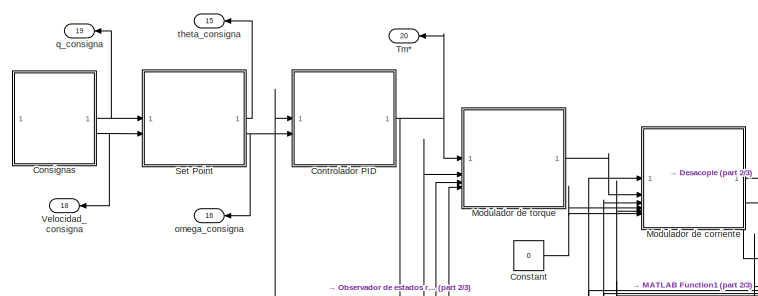
[diagram: root canvas - part 1/3, top left region]
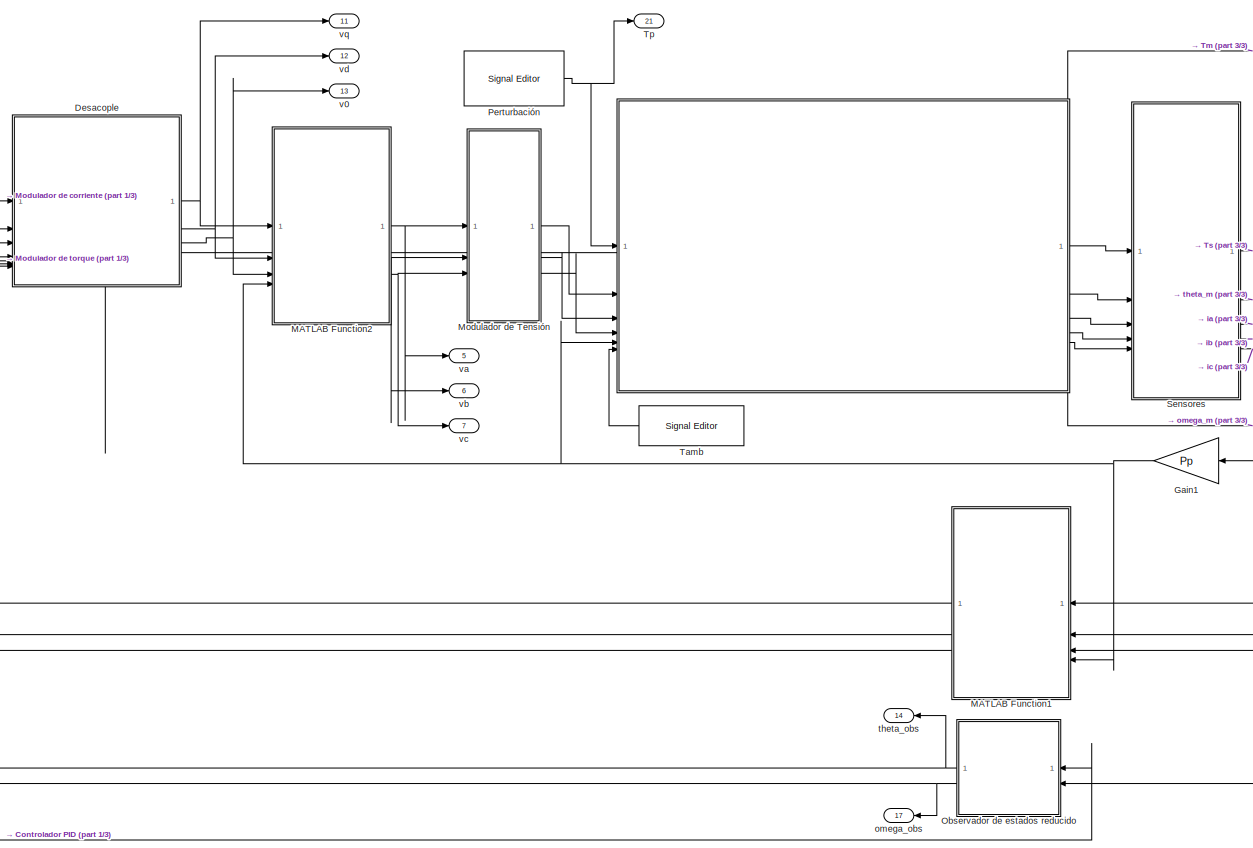
[diagram: root canvas - part 2/3, center side, full height]
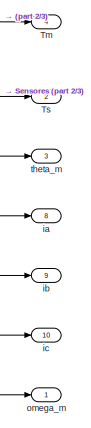
[diagram: root canvas - part 3/3, top right region]
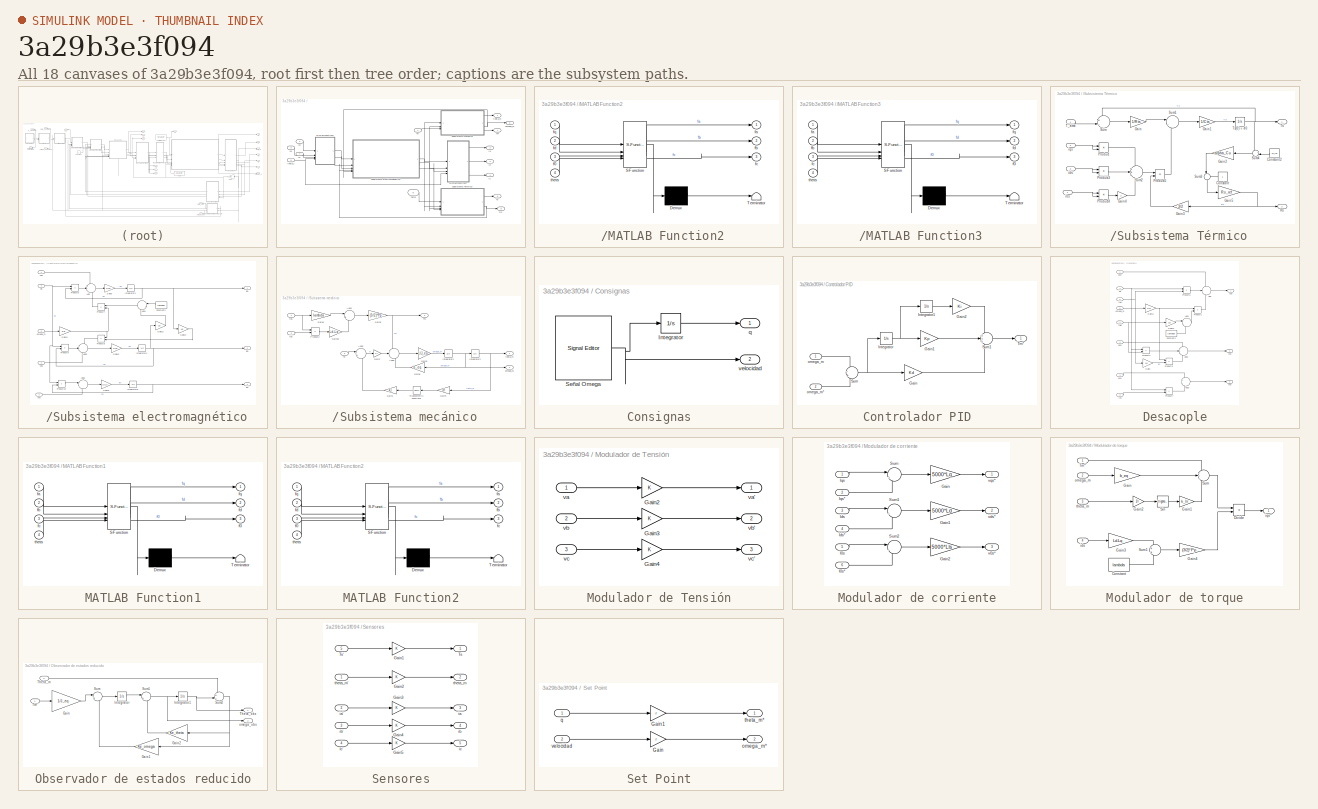
[diagram: thumbnail index - all 18 canvases of the model, root first then tree order]
MODEL slx_3a29b3e3f094
KIND model
CONFIG AbsTol = auto
CONFIG EnableMultiTasking = off
CONFIG FixedStep = auto
CONFIG MaxStep = 1e-4
CONFIG MinStep = auto
CONFIG RelTol = 1e-3
CONFIG SampleTimeConstraint = Unconstrained
CONFIG SolverName = ode45
CONFIG StartTime = 0.0
CONFIG StopTime = 15
BLOCK [SubSystem]  
  PortSchema = {"entries":[{"content":{"sides":[{"content":{"connectorIds":["In1","In2","In3","In4","In5","In6"]},"type":"ConnectorPlacement.EquallySpacedRectSide","uuid":"548fbf6f-bb54-461c-a3ca-ae13566b19bb"},{"content":{"connectorIds":["Out1","Out2","Out3","Out4","Out5"],"side":"RIGHT"},"type":"ConnectorPlacement.EquallySpacedRectSide","uuid":"c9a1420a-e64d-4e02-ad2b-140f5c663a2c"},{"content":{"connectorIds":...<+461ch>
BLOCK [Outport]  /Ia
  Port = 2
BLOCK [Outport]  /Ib
  Port = 3
BLOCK [Outport]  /Ic
  Port = 4
BLOCK [SubSystem]  /MATLAB Function2
  ErrorFcn = Stateflow.Translate.translate
  LibrarySourceBlock = simulink/User-Defined\nFunctions/MATLAB Function
  PermitHierarchicalResolution = ExplicitOnly
  SFBlockType = MATLAB Function
  TreatAsAtomicUnit = on
BLOCK [Demux]  /MATLAB Function2/ Demux 
  Outputs = 1
BLOCK [S-Function]  /MATLAB Function2/ SFunction 
  EnableBusSupport = on
  FunctionName = sf_sfun
  PortCounts = [4 4]
  SFcnIsStateOwnerBlock = off
  SFunctionDeploymentMode = off
  Tag = Stateflow S-Function 4
BLOCK [Terminator]  /MATLAB Function2/ Terminator 
BLOCK [Inport]  /MATLAB Function2/f0
  Port = 3
BLOCK [Outport]  /MATLAB Function2/fa
BLOCK [Outport]  /MATLAB Function2/fb
  Port = 2
BLOCK [Outport]  /MATLAB Function2/fc
  Port = 3
BLOCK [Inport]  /MATLAB Function2/fd
  Port = 2
BLOCK [Inport]  /MATLAB Function2/fq
BLOCK [Inport]  /MATLAB Function2/theta
  Port = 4
BLOCK [SubSystem]  /MATLAB Function3
  ErrorFcn = Stateflow.Translate.translate
  LibrarySourceBlock = simulink/User-Defined\nFunctions/MATLAB Function
  PermitHierarchicalResolution = ExplicitOnly
  SFBlockType = MATLAB Function
  TreatAsAtomicUnit = on
BLOCK [Demux]  /MATLAB Function3/ Demux 
  Outputs = 1
BLOCK [S-Function]  /MATLAB Function3/ SFunction 
  EnableBusSupport = on
  FunctionName = sf_sfun
  PortCounts = [4 4]
  SFcnIsStateOwnerBlock = off
  SFunctionDeploymentMode = off
  Tag = Stateflow S-Function 6
BLOCK [Terminator]  /MATLAB Function3/ Terminator 
BLOCK [Outport]  /MATLAB Function3/f0
  Port = 3
BLOCK [Inport]  /MATLAB Function3/fa
BLOCK [Inport]  /MATLAB Function3/fb
  Port = 2
BLOCK [Inport]  /MATLAB Function3/fc
  Port = 3
BLOCK [Outport]  /MATLAB Function3/fd
  Port = 2
BLOCK [Outport]  /MATLAB Function3/fq
BLOCK [Inport]  /MATLAB Function3/theta
  Port = 4
BLOCK [Outport]  /Rs
  Port = 8
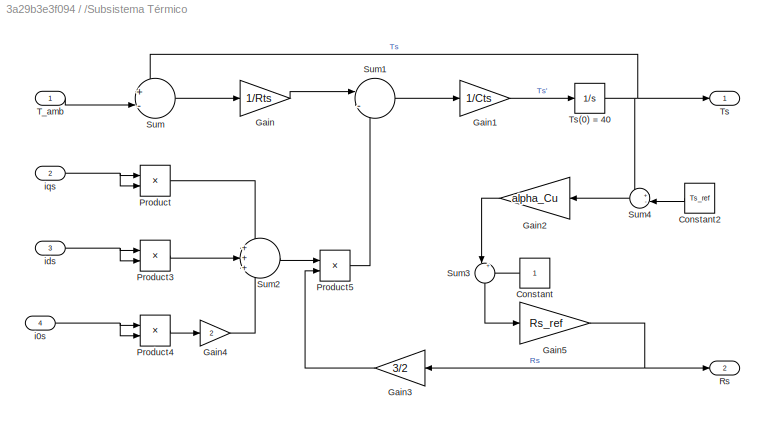
BLOCK [SubSystem]  /Subsistema Térmico
BLOCK [Constant]  /Subsistema Térmico/Constant
BLOCK [Constant]  /Subsistema Térmico/Constant2
  Value = Ts_ref
BLOCK [Gain]  /Subsistema Térmico/Gain
  Gain = 1/Rts
BLOCK [Gain]  /Subsistema Térmico/Gain1
  Gain = 1/Cts
BLOCK [Gain]  /Subsistema Térmico/Gain2
  Gain = alpha_Cu
BLOCK [Gain]  /Subsistema Térmico/Gain3
  Gain = 3/2
BLOCK [Gain]  /Subsistema Térmico/Gain4
  Gain = 2
BLOCK [Gain]  /Subsistema Térmico/Gain5
  Gain = Rs_ref
BLOCK [Product]  /Subsistema Térmico/Product
BLOCK [Product]  /Subsistema Térmico/Product3
BLOCK [Product]  /Subsistema Térmico/Product4
BLOCK [Product]  /Subsistema Térmico/Product5
BLOCK [Outport]  /Subsistema Térmico/Rs
  Port = 2
BLOCK [Sum]  /Subsistema Térmico/Sum
  Inputs = +-|
BLOCK [Sum]  /Subsistema Térmico/Sum1
  Inputs = |-+
BLOCK [Sum]  /Subsistema Térmico/Sum2
  Inputs = +++
BLOCK [Sum]  /Subsistema Térmico/Sum3
  Inputs = |++
  NameLocation = right
BLOCK [Sum]  /Subsistema Térmico/Sum4
  Inputs = +-|
BLOCK [Inport]  /Subsistema Térmico/T_amb
BLOCK [Outport]  /Subsistema Térmico/Ts
BLOCK [Integrator]  /Subsistema Térmico/Ts(0) = 40
  InitialCondition = 40
BLOCK [Inport]  /Subsistema Térmico/i0s
  Port = 4
BLOCK [Inport]  /Subsistema Térmico/ids
  Port = 3
BLOCK [Inport]  /Subsistema Térmico/iqs
  Port = 2
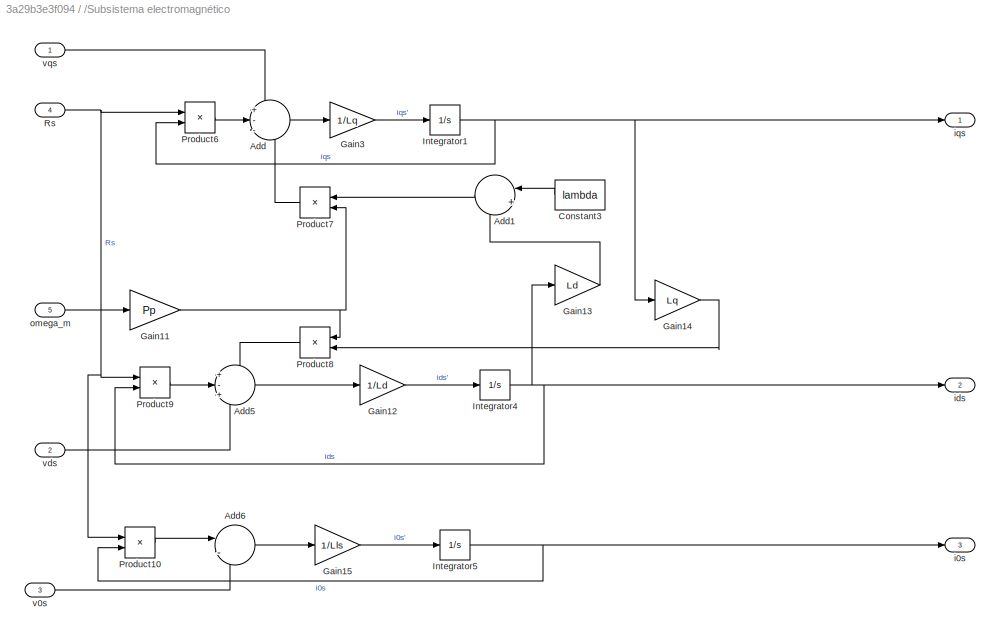
BLOCK [SubSystem]  /Subsistema electromagnético
BLOCK [Sum]  /Subsistema electromagnético/Add
  Inputs = +--
BLOCK [Sum]  /Subsistema electromagnético/Add1
  Inputs = |++
BLOCK [Sum]  /Subsistema electromagnético/Add5
  Inputs = +-+
BLOCK [Sum]  /Subsistema electromagnético/Add6
  Inputs = |-+
BLOCK [Constant]  /Subsistema electromagnético/Constant3
  Value = lambda
BLOCK [Gain]  /Subsistema electromagnético/Gain11
  Gain = Pp
BLOCK [Gain]  /Subsistema electromagnético/Gain12
  Gain = 1/Ld
BLOCK [Gain]  /Subsistema electromagnético/Gain13
  Gain = Ld
BLOCK [Gain]  /Subsistema electromagnético/Gain14
  Gain = Lq
BLOCK [Gain]  /Subsistema electromagnético/Gain15
  Gain = 1/Lls
BLOCK [Gain]  /Subsistema electromagnético/Gain3
  Gain = 1/Lq
BLOCK [Integrator]  /Subsistema electromagnético/Integrator1
BLOCK [Integrator]  /Subsistema electromagnético/Integrator4
BLOCK [Integrator]  /Subsistema electromagnético/Integrator5
BLOCK [Product]  /Subsistema electromagnético/Product10
BLOCK [Product]  /Subsistema electromagnético/Product6
BLOCK [Product]  /Subsistema electromagnético/Product7
BLOCK [Product]  /Subsistema electromagnético/Product8
BLOCK [Product]  /Subsistema electromagnético/Product9
BLOCK [Inport]  /Subsistema electromagnético/Rs
  Port = 4
BLOCK [Outport]  /Subsistema electromagnético/i0s
  Port = 3
BLOCK [Outport]  /Subsistema electromagnético/ids
  Port = 2
BLOCK [Outport]  /Subsistema electromagnético/iqs
BLOCK [Inport]  /Subsistema electromagnético/omega_m
  Port = 5
BLOCK [Inport]  /Subsistema electromagnético/v0s
  Port = 3
BLOCK [Inport]  /Subsistema electromagnético/vds
  Port = 2
BLOCK [Inport]  /Subsistema electromagnético/vqs
BLOCK [SubSystem]  /Subsistema mecánico
BLOCK [Sum]  /Subsistema mecánico/Add2
  Inputs = |++
BLOCK [Sum]  /Subsistema mecánico/Add3
  Inputs = +--
BLOCK [Sum]  /Subsistema mecánico/Add4
  Inputs = |++
BLOCK [Gain]  /Subsistema mecánico/Gain1
  Gain = k_l
BLOCK [Gain]  /Subsistema mecánico/Gain10
  Gain = Ld-Lq
BLOCK [Gain]  /Subsistema mecánico/Gain4
  Gain = 1/r
BLOCK [Gain]  /Subsistema mecánico/Gain5
  Gain = 1/J_eq
BLOCK [Gain]  /Subsistema mecánico/Gain6
  Gain = b_eq
BLOCK [Gain]  /Subsistema mecánico/Gain7
  Gain = 1/r
BLOCK [Gain]  /Subsistema mecánico/Gain8
  Gain = lambda
BLOCK [Gain]  /Subsistema mecánico/Gain9
  Gain = (3/2)*Pp
BLOCK [Integrator]  /Subsistema mecánico/Integrator2
BLOCK [Integrator]  /Subsistema mecánico/Integrator3
BLOCK [Product]  /Subsistema mecánico/Product2
BLOCK [Outport]  /Subsistema mecánico/Tm
  IconDisplay = Port number and signal name
  Port = 3
BLOCK [Inport]  /Subsistema mecánico/Tp
  Port = 3
BLOCK [Trigonometry]  /Subsistema mecánico/Trigonometric Function1
BLOCK [Inport]  /Subsistema mecánico/ids
  Port = 2
BLOCK [Inport]  /Subsistema mecánico/iqs
BLOCK [Outport]  /Subsistema mecánico/omega_m
  Port = 2
BLOCK [Outport]  /Subsistema mecánico/theta_m
BLOCK [Inport]  /Tamb
  Port = 6
BLOCK [Outport]  /Tm
  Port = 7
BLOCK [Inport]  /Tp
BLOCK [Outport]  /Ts
  Port = 5
BLOCK [Outport]  /omega_m
  Port = 6
BLOCK [Outport]  /theta_m
BLOCK [Inport]  /theta_r
  Port = 5
BLOCK [Inport]  /va
  Port = 2
BLOCK [Inport]  /vb
  Port = 3
BLOCK [Inport]  /vc
  Port = 4
BLOCK [SubSystem] Consignas
BLOCK [Integrator] Consignas/Integrator
BLOCK [Reference] Consignas/Señal Omega  REF=SignalEditorBlockLib/Signal Editor
  LibrarySourceBlock = simulink/Sources/Signal Editor
  SourceBlock = SignalEditorBlockLib/Signal Editor
  SourceType = SignalEditor
  UserDataPersistent = on
BLOCK [Outport] Consignas/q
BLOCK [Outport] Consignas/velocidad
  Port = 2
BLOCK [Constant] Constant
  Value = 0
BLOCK [SubSystem] Controlador PID
BLOCK [Gain] Controlador PID/Gain
  Gain = Kd
BLOCK [Gain] Controlador PID/Gain1
  Gain = Kp
BLOCK [Gain] Controlador PID/Gain2
  Gain = Ki
BLOCK [Integrator] Controlador PID/Integrator
BLOCK [Integrator] Controlador PID/Integrator1
BLOCK [Sum] Controlador PID/Sum
  Inputs = -+
BLOCK [Sum] Controlador PID/Sum1
  Inputs = +++
BLOCK [Outport] Controlador PID/Tm*
BLOCK [Inport] Controlador PID/omega_m
BLOCK [Inport] Controlador PID/omega_m*
  Port = 2
BLOCK [SubSystem] Desacople
BLOCK [Sum] Desacople/Add
  Inputs = +++
BLOCK [Sum] Desacople/Add1
  Inputs = |++
BLOCK [Sum] Desacople/Add2
  Inputs = ++-
BLOCK [Sum] Desacople/Add3
BLOCK [Constant] Desacople/Constant3
  Value = lambda
BLOCK [Gain] Desacople/Gain1
  Gain = Lq
BLOCK [Gain] Desacople/Gain11
  Gain = Pp
BLOCK [Gain] Desacople/Gain12
  Gain = Ld
BLOCK [Inport] Desacople/I0s
  Port = 8
BLOCK [Inport] Desacople/Ids
  Port = 7
BLOCK [Inport] Desacople/Iqs
  Port = 6
BLOCK [Product] Desacople/Product1
BLOCK [Product] Desacople/Product2
BLOCK [Product] Desacople/Product3
BLOCK [Product] Desacople/Product6
BLOCK [Product] Desacople/Product7
BLOCK [Inport] Desacople/Rs
  Port = 4
BLOCK [Inport] Desacople/omega_m
  Port = 5
BLOCK [Outport] Desacople/v0s
  Port = 3
BLOCK [Inport] Desacople/v0s*
  Port = 3
BLOCK [Outport] Desacople/vds
  Port = 2
BLOCK [Inport] Desacople/vds*
  Port = 2
BLOCK [Outport] Desacople/vqs
BLOCK [Inport] Desacople/vqs*
BLOCK [Gain] Gain1
  Gain = Pp
BLOCK [SubSystem] MATLAB Function1
  ErrorFcn = Stateflow.Translate.translate
  LibrarySourceBlock = simulink/User-Defined\nFunctions/MATLAB Function
  PermitHierarchicalResolution = ExplicitOnly
  SFBlockType = MATLAB Function
  TreatAsAtomicUnit = on
BLOCK [Demux] MATLAB Function1/ Demux 
  Outputs = 1
BLOCK [S-Function] MATLAB Function1/ SFunction 
  EnableBusSupport = on
  FunctionName = sf_sfun
  PortCounts = [4 4]
  SFcnIsStateOwnerBlock = off
  SFunctionDeploymentMode = off
  Tag = Stateflow S-Function 7
BLOCK [Terminator] MATLAB Function1/ Terminator 
BLOCK [Outport] MATLAB Function1/f0
  Port = 3
BLOCK [Inport] MATLAB Function1/fa
BLOCK [Inport] MATLAB Function1/fb
  Port = 2
BLOCK [Inport] MATLAB Function1/fc
  Port = 3
BLOCK [Outport] MATLAB Function1/fd
  Port = 2
BLOCK [Outport] MATLAB Function1/fq
BLOCK [Inport] MATLAB Function1/theta
  Port = 4
BLOCK [SubSystem] MATLAB Function2
  ErrorFcn = Stateflow.Translate.translate
  LibrarySourceBlock = simulink/User-Defined\nFunctions/MATLAB Function
  PermitHierarchicalResolution = ExplicitOnly
  SFBlockType = MATLAB Function
  TreatAsAtomicUnit = on
BLOCK [Demux] MATLAB Function2/ Demux 
  Outputs = 1
BLOCK [S-Function] MATLAB Function2/ SFunction 
  EnableBusSupport = on
  FunctionName = sf_sfun
  PortCounts = [4 4]
  SFcnIsStateOwnerBlock = off
  SFunctionDeploymentMode = off
  Tag = Stateflow S-Function 8
BLOCK [Terminator] MATLAB Function2/ Terminator 
BLOCK [Inport] MATLAB Function2/f0
  Port = 3
BLOCK [Outport] MATLAB Function2/fa
BLOCK [Outport] MATLAB Function2/fb
  Port = 2
BLOCK [Outport] MATLAB Function2/fc
  Port = 3
BLOCK [Inport] MATLAB Function2/fd
  Port = 2
BLOCK [Inport] MATLAB Function2/fq
BLOCK [Inport] MATLAB Function2/theta
  Port = 4
BLOCK [SubSystem] Modulador de Tensión
BLOCK [Gain] Modulador de Tensión/Gain2
BLOCK [Gain] Modulador de Tensión/Gain3
BLOCK [Gain] Modulador de Tensión/Gain4
BLOCK [Inport] Modulador de Tensión/va
BLOCK [Outport] Modulador de Tensión/va'
BLOCK [Inport] Modulador de Tensión/vb
  Port = 2
BLOCK [Outport] Modulador de Tensión/vb'
  Port = 2
BLOCK [Inport] Modulador de Tensión/vc
  Port = 3
BLOCK [Outport] Modulador de Tensión/vc'
  Port = 3
BLOCK [SubSystem] Modulador de corriente
BLOCK [Gain] Modulador de corriente/Gain
  Gain = 5000*Lq
BLOCK [Gain] Modulador de corriente/Gain1
  Gain = 5000*Ld
BLOCK [Gain] Modulador de corriente/Gain2
  Gain = 5000*Lls
BLOCK [Inport] Modulador de corriente/I0s
  Port = 5
BLOCK [Inport] Modulador de corriente/I0s*
  Port = 6
BLOCK [Inport] Modulador de corriente/Ids
  Port = 3
BLOCK [Inport] Modulador de corriente/Ids*
  Port = 4
BLOCK [Inport] Modulador de corriente/Iqs
BLOCK [Inport] Modulador de corriente/Iqs*
  Port = 2
BLOCK [Sum] Modulador de corriente/Sum
  Inputs = |-+
BLOCK [Sum] Modulador de corriente/Sum1
  Inputs = |-+
BLOCK [Sum] Modulador de corriente/Sum2
  Inputs = |-+
BLOCK [Outport] Modulador de corriente/v0s*
  Port = 3
BLOCK [Outport] Modulador de corriente/vds*
  Port = 2
BLOCK [Outport] Modulador de corriente/vqs*
BLOCK [SubSystem] Modulador de torque
BLOCK [Constant] Modulador de torque/Constant
  Value = lambda
BLOCK [Product] Modulador de torque/Divide
  Inputs = */
BLOCK [Gain] Modulador de torque/Gain
  Gain = b_eq
BLOCK [Gain] Modulador de torque/Gain1
  Gain = k_l/r
BLOCK [Gain] Modulador de torque/Gain2
  Gain = 1/r
BLOCK [Gain] Modulador de torque/Gain3
  Gain = Ld-Lq
BLOCK [Gain] Modulador de torque/Gain4
  Gain = (3/2)*Pp
BLOCK [Trigonometry] Modulador de torque/Sin
BLOCK [Sum] Modulador de torque/Sum
  Inputs = +++
BLOCK [Sum] Modulador de torque/Sum1
BLOCK [Inport] Modulador de torque/Tm*
BLOCK [Inport] Modulador de torque/ids
  Port = 4
BLOCK [Outport] Modulador de torque/iqs*
BLOCK [Inport] Modulador de torque/omega_m
  Port = 2
BLOCK [Inport] Modulador de torque/theta_m
  Port = 3
BLOCK [SubSystem] Observador de estados reducido
BLOCK [Gain] Observador de estados reducido/Gain
  Gain = 1/J_eq
BLOCK [Gain] Observador de estados reducido/Gain1
  Gain = Ke_omega
BLOCK [Gain] Observador de estados reducido/Gain2
  Gain = Ke_theta
BLOCK [Integrator] Observador de estados reducido/Integrator
BLOCK [Integrator] Observador de estados reducido/Integrator1
BLOCK [Sum] Observador de estados reducido/Sum
  Inputs = |++
BLOCK [Sum] Observador de estados reducido/Sum1
  Inputs = |++
BLOCK [Sum] Observador de estados reducido/Sum2
  Inputs = +-|
BLOCK [Inport] Observador de estados reducido/Theta_m
  Port = 2
BLOCK [Outport] Observador de estados reducido/Theta_obs
BLOCK [Inport] Observador de estados reducido/Tm*
BLOCK [Outport] Observador de estados reducido/omega_obs
  Port = 2
BLOCK [Reference] Perturbación  REF=SignalEditorBlockLib/Signal Editor
  LibrarySourceBlock = simulink/Sources/Signal Editor
  SourceBlock = SignalEditorBlockLib/Signal Editor
  SourceType = SignalEditor
  UserDataPersistent = on
BLOCK [SubSystem] Sensores
BLOCK [Gain] Sensores/Gain1
BLOCK [Gain] Sensores/Gain2
BLOCK [Gain] Sensores/Gain3
BLOCK [Gain] Sensores/Gain4
BLOCK [Gain] Sensores/Gain5
BLOCK [Inport] Sensores/Ic'
  Port = 4
BLOCK [Outport] Sensores/Ts
BLOCK [Inport] Sensores/Ts'
  Port = 5
BLOCK [Outport] Sensores/ia
  Port = 3
BLOCK [Inport] Sensores/ia'
  Port = 2
BLOCK [Outport] Sensores/ib
  Port = 4
BLOCK [Inport] Sensores/ib'
  Port = 3
BLOCK [Outport] Sensores/ic
  Port = 5
BLOCK [Outport] Sensores/theta_m
  Port = 2
BLOCK [Inport] Sensores/theta_m'
BLOCK [SubSystem] Set Point
BLOCK [Gain] Set Point/Gain
  Gain = r
BLOCK [Gain] Set Point/Gain1
  Gain = r
BLOCK [Outport] Set Point/omega_m*
  Port = 2
BLOCK [Inport] Set Point/q
BLOCK [Outport] Set Point/theta_m*
BLOCK [Inport] Set Point/velocidad
  Port = 2
BLOCK [Reference] Tamb  REF=SignalEditorBlockLib/Signal Editor
  LibrarySourceBlock = simulink/Sources/Signal Editor
  SourceBlock = SignalEditorBlockLib/Signal Editor
  SourceType = SignalEditor
  UserDataPersistent = on
BLOCK [Outport] Tm
  Port = 4
BLOCK [Outport] Tm*
  Port = 20
BLOCK [Outport] Tp
  Port = 21
BLOCK [Outport] Ts
  Port = 2
BLOCK [Outport] Velocidad_consigna
  Port = 18
BLOCK [Outport] ia
  Port = 8
BLOCK [Outport] ib
  Port = 9
BLOCK [Outport] ic
  Port = 10
BLOCK [Outport] omega_consigna
  Port = 16
BLOCK [Outport] omega_m
BLOCK [Outport] omega_obs
  Port = 17
BLOCK [Outport] q_consigna
  Port = 19
BLOCK [Outport] theta_consigna
  Port = 15
BLOCK [Outport] theta_m
  Port = 3
BLOCK [Outport] theta_obs
  Port = 14
BLOCK [Outport] v0
  Port = 13
BLOCK [Outport] va
  Port = 5
BLOCK [Outport] vb
  Port = 6
BLOCK [Outport] vc
  Port = 7
BLOCK [Outport] vd
  Port = 12
BLOCK [Outport] vq
  Port = 11
LINE  /MATLAB Function2:1 ->  /Ia:1
LINE  /MATLAB Function2:2 ->  /Ib:1
LINE  /MATLAB Function2:3 ->  /Ic:1
LINE  /MATLAB Function3:1 ->  /Subsistema electromagnético:1
LINE  /MATLAB Function3:2 ->  /Subsistema electromagnético:2
LINE  /MATLAB Function3:3 ->  /Subsistema electromagnético:3
LINE  /Subsistema Térmico/Constant2:1 ->  /Subsistema Térmico/Sum4:2
LINE  /Subsistema Térmico/Constant:1 ->  /Subsistema Térmico/Sum3:2
LINE  /Subsistema Térmico/Gain1:1 ->  /Subsistema Térmico/Ts(0) = 40:1
LINE  /Subsistema Térmico/Gain2:1 ->  /Subsistema Térmico/Sum3:1
LINE  /Subsistema Térmico/Gain3:1 ->  /Subsistema Térmico/Product5:2
LINE  /Subsistema Térmico/Gain4:1 ->  /Subsistema Térmico/Sum2:3
NET  /Subsistema Térmico/Gain5:1 ->  /Subsistema Térmico/Gain3:1,  /Subsistema Térmico/Rs:1
LINE  /Subsistema Térmico/Gain:1 ->  /Subsistema Térmico/Sum1:1
LINE  /Subsistema Térmico/Product3:1 ->  /Subsistema Térmico/Sum2:2
LINE  /Subsistema Térmico/Product4:1 ->  /Subsistema Térmico/Gain4:1
LINE  /Subsistema Térmico/Product5:1 ->  /Subsistema Térmico/Sum1:2
LINE  /Subsistema Térmico/Product:1 ->  /Subsistema Térmico/Sum2:1
LINE  /Subsistema Térmico/Sum1:1 ->  /Subsistema Térmico/Gain1:1
LINE  /Subsistema Térmico/Sum2:1 ->  /Subsistema Térmico/Product5:1
LINE  /Subsistema Térmico/Sum3:1 ->  /Subsistema Térmico/Gain5:1
LINE  /Subsistema Térmico/Sum4:1 ->  /Subsistema Térmico/Gain2:1
LINE  /Subsistema Térmico/Sum:1 ->  /Subsistema Térmico/Gain:1
LINE  /Subsistema Térmico/T_amb:1 ->  /Subsistema Térmico/Sum:2
NET  /Subsistema Térmico/Ts(0) = 40:1 ->  /Subsistema Térmico/Sum4:1,  /Subsistema Térmico/Sum:1,  /Subsistema Térmico/Ts:1
NET  /Subsistema Térmico/i0s:1 ->  /Subsistema Térmico/Product4:1,  /Subsistema Térmico/Product4:2
NET  /Subsistema Térmico/ids:1 ->  /Subsistema Térmico/Product3:1,  /Subsistema Térmico/Product3:2
NET  /Subsistema Térmico/iqs:1 ->  /Subsistema Térmico/Product:1,  /Subsistema Térmico/Product:2
LINE  /Subsistema Térmico:1 ->  /Ts:1
NET  /Subsistema Térmico:2 ->  /Rs:1,  /Subsistema electromagnético:4
LINE  /Subsistema electromagnético/Add1:1 ->  /Subsistema electromagnético/Product7:1
LINE  /Subsistema electromagnético/Add5:1 ->  /Subsistema electromagnético/Gain12:1
LINE  /Subsistema electromagnético/Add6:1 ->  /Subsistema electromagnético/Gain15:1
LINE  /Subsistema electromagnético/Add:1 ->  /Subsistema electromagnético/Gain3:1
LINE  /Subsistema electromagnético/Constant3:1 ->  /Subsistema electromagnético/Add1:1
NET  /Subsistema electromagnético/Gain11:1 ->  /Subsistema electromagnético/Product7:2,  /Subsistema electromagnético/Product8:1
LINE  /Subsistema electromagnético/Gain12:1 ->  /Subsistema electromagnético/Integrator4:1
LINE  /Subsistema electromagnético/Gain13:1 ->  /Subsistema electromagnético/Add1:2
LINE  /Subsistema electromagnético/Gain14:1 ->  /Subsistema electromagnético/Product8:2
LINE  /Subsistema electromagnético/Gain15:1 ->  /Subsistema electromagnético/Integrator5:1
LINE  /Subsistema electromagnético/Gain3:1 ->  /Subsistema electromagnético/Integrator1:1
NET  /Subsistema electromagnético/Integrator1:1 ->  /Subsistema electromagnético/Gain14:1,  /Subsistema electromagnético/Product6:2,  /Subsistema electromagnético/iqs:1
NET  /Subsistema electromagnético/Integrator4:1 ->  /Subsistema electromagnético/Gain13:1,  /Subsistema electromagnético/Product9:2,  /Subsistema electromagnético/ids:1
NET  /Subsistema electromagnético/Integrator5:1 ->  /Subsistema electromagnético/Product10:2,  /Subsistema electromagnético/i0s:1
LINE  /Subsistema electromagnético/Product10:1 ->  /Subsistema electromagnético/Add6:1
LINE  /Subsistema electromagnético/Product6:1 ->  /Subsistema electromagnético/Add:2
LINE  /Subsistema electromagnético/Product7:1 ->  /Subsistema electromagnético/Add:3
LINE  /Subsistema electromagnético/Product8:1 ->  /Subsistema electromagnético/Add5:1
LINE  /Subsistema electromagnético/Product9:1 ->  /Subsistema electromagnético/Add5:2
NET  /Subsistema electromagnético/Rs:1 ->  /Subsistema electromagnético/Product10:1,  /Subsistema electromagnético/Product6:1,  /Subsistema electromagnético/Product9:1
LINE  /Subsistema electromagnético/omega_m:1 ->  /Subsistema electromagnético/Gain11:1
LINE  /Subsistema electromagnético/v0s:1 ->  /Subsistema electromagnético/Add6:2
LINE  /Subsistema electromagnético/vds:1 ->  /Subsistema electromagnético/Add5:3
LINE  /Subsistema electromagnético/vqs:1 ->  /Subsistema electromagnético/Add:1
NET  /Subsistema electromagnético:1 ->  /MATLAB Function2:1,  /Subsistema Térmico:2,  /Subsistema mecánico:1
NET  /Subsistema electromagnético:2 ->  /MATLAB Function2:2,  /Subsistema Térmico:3,  /Subsistema mecánico:2
NET  /Subsistema electromagnético:3 ->  /MATLAB Function2:3,  /Subsistema Térmico:4
LINE  /Subsistema mecánico/Add2:1 ->  /Subsistema mecánico/Gain7:1
LINE  /Subsistema mecánico/Add3:1 ->  /Subsistema mecánico/Gain5:1
LINE  /Subsistema mecánico/Add4:1 ->  /Subsistema mecánico/Gain9:1
LINE  /Subsistema mecánico/Gain10:1 ->  /Subsistema mecánico/Add4:2
LINE  /Subsistema mecánico/Gain1:1 ->  /Subsistema mecánico/Add2:2
LINE  /Subsistema mecánico/Gain4:1 ->  /Subsistema mecánico/Trigonometric Function1:1
LINE  /Subsistema mecánico/Gain5:1 ->  /Subsistema mecánico/Integrator2:1
LINE  /Subsistema mecánico/Gain6:1 ->  /Subsistema mecánico/Add3:3
LINE  /Subsistema mecánico/Gain7:1 ->  /Subsistema mecánico/Add3:2
LINE  /Subsistema mecánico/Gain8:1 ->  /Subsistema mecánico/Add4:1
NET  /Subsistema mecánico/Gain9:1 ->  /Subsistema mecánico/Add3:1,  /Subsistema mecánico/Tm:1
NET  /Subsistema mecánico/Integrator2:1 ->  /Subsistema mecánico/Gain6:1,  /Subsistema mecánico/Integrator3:1,  /Subsistema mecánico/omega_m:1
NET  /Subsistema mecánico/Integrator3:1 ->  /Subsistema mecánico/Gain4:1,  /Subsistema mecánico/theta_m:1
LINE  /Subsistema mecánico/Product2:1 ->  /Subsistema mecánico/Gain10:1
LINE  /Subsistema mecánico/Tp:1 ->  /Subsistema mecánico/Add2:1
LINE  /Subsistema mecánico/Trigonometric Function1:1 ->  /Subsistema mecánico/Gain1:1
LINE  /Subsistema mecánico/ids:1 ->  /Subsistema mecánico/Product2:2
NET  /Subsistema mecánico/iqs:1 ->  /Subsistema mecánico/Gain8:1,  /Subsistema mecánico/Product2:1
LINE  /Subsistema mecánico:1 ->  /theta_m:1
NET  /Subsistema mecánico:2 ->  /Subsistema electromagnético:5,  /omega_m:1
LINE  /Subsistema mecánico:3 ->  /Tm:1
LINE  /Tamb:1 ->  /Subsistema Térmico:1
LINE  /Tp:1 ->  /Subsistema mecánico:3
NET  /theta_r:1 ->  /MATLAB Function2:4,  /MATLAB Function3:4
LINE  /va:1 ->  /MATLAB Function3:1
LINE  /vb:1 ->  /MATLAB Function3:2
LINE  /vc:1 ->  /MATLAB Function3:3
LINE  :1 -> Sensores:1
LINE  :2 -> Sensores:2
LINE  :3 -> Sensores:3
LINE  :4 -> Sensores:4
LINE  :5 -> Sensores:5
LINE  :6 -> omega_m:1
LINE  :7 -> Tm:1
LINE  :8 -> Desacople:4
LINE Consignas/Integrator:1 -> Consignas/q:1
NET Consignas/Señal Omega:1 -> Consignas/Integrator:1, Consignas/velocidad:1
NET Consignas:1 -> Set Point:1, q_consigna:1
NET Consignas:2 -> Set Point:2, Velocidad_consigna:1
NET Constant:1 -> Modulador de corriente:4, Modulador de corriente:6
LINE Controlador PID/Gain1:1 -> Controlador PID/Sum1:2
LINE Controlador PID/Gain2:1 -> Controlador PID/Sum1:1
LINE Controlador PID/Gain:1 -> Controlador PID/Sum1:3
LINE Controlador PID/Integrator1:1 -> Controlador PID/Gain2:1
NET Controlador PID/Integrator:1 -> Controlador PID/Gain1:1, Controlador PID/Integrator1:1
LINE Controlador PID/Sum1:1 -> Controlador PID/Tm*:1
NET Controlador PID/Sum:1 -> Controlador PID/Gain:1, Controlador PID/Integrator:1
LINE Controlador PID/omega_m*:1 -> Controlador PID/Sum:2
LINE Controlador PID/omega_m:1 -> Controlador PID/Sum:1
NET Controlador PID:1 -> Modulador de torque:1, Observador de estados reducido:1, Tm*:1
LINE Desacople/Add1:1 -> Desacople/Product1:2
LINE Desacople/Add2:1 -> Desacople/vds:1
LINE Desacople/Add3:1 -> Desacople/v0s:1
LINE Desacople/Add:1 -> Desacople/vqs:1
LINE Desacople/Constant3:1 -> Desacople/Add1:2
NET Desacople/Gain11:1 -> Desacople/Product1:1, Desacople/Product3:1
LINE Desacople/Gain12:1 -> Desacople/Add1:1
LINE Desacople/Gain1:1 -> Desacople/Product3:2
LINE Desacople/I0s:1 -> Desacople/Product7:2
NET Desacople/Ids:1 -> Desacople/Gain12:1, Desacople/Product2:2
NET Desacople/Iqs:1 -> Desacople/Gain1:1, Desacople/Product6:2
LINE Desacople/Product1:1 -> Desacople/Add:3
LINE Desacople/Product2:1 -> Desacople/Add2:2
LINE Desacople/Product3:1 -> Desacople/Add2:3
LINE Desacople/Product6:1 -> Desacople/Add:2
LINE Desacople/Product7:1 -> Desacople/Add3:2
NET Desacople/Rs:1 -> Desacople/Product2:1, Desacople/Product6:1, Desacople/Product7:1
LINE Desacople/omega_m:1 -> Desacople/Gain11:1
LINE Desacople/v0s*:1 -> Desacople/Add3:1
LINE Desacople/vds*:1 -> Desacople/Add2:1
LINE Desacople/vqs*:1 -> Desacople/Add:1
NET Desacople:1 -> MATLAB Function2:1, vq:1
NET Desacople:2 -> MATLAB Function2:2, vd:1
NET Desacople:3 -> MATLAB Function2:3, v0:1
NET Gain1:1 ->  :5, MATLAB Function1:4, MATLAB Function2:4
NET MATLAB Function1:1 -> Desacople:6, Modulador de corriente:1
NET MATLAB Function1:2 -> Desacople:7, Modulador de corriente:3, Modulador de torque:4
NET MATLAB Function1:3 -> Desacople:8, Modulador de corriente:5
NET MATLAB Function2:1 -> Modulador de Tensión:1, va:1
NET MATLAB Function2:2 -> Modulador de Tensión:2, vb:1
NET MATLAB Function2:3 -> Modulador de Tensión:3, vc:1
LINE Modulador de Tensión/Gain2:1 -> Modulador de Tensión/va':1
LINE Modulador de Tensión/Gain3:1 -> Modulador de Tensión/vb':1
LINE Modulador de Tensión/Gain4:1 -> Modulador de Tensión/vc':1
LINE Modulador de Tensión/va:1 -> Modulador de Tensión/Gain2:1
LINE Modulador de Tensión/vb:1 -> Modulador de Tensión/Gain3:1
LINE Modulador de Tensión/vc:1 -> Modulador de Tensión/Gain4:1
LINE Modulador de Tensión:1 ->  :2
LINE Modulador de Tensión:2 ->  :3
LINE Modulador de Tensión:3 ->  :4
LINE Modulador de corriente/Gain1:1 -> Modulador de corriente/vds*:1
LINE Modulador de corriente/Gain2:1 -> Modulador de corriente/v0s*:1
LINE Modulador de corriente/Gain:1 -> Modulador de corriente/vqs*:1
LINE Modulador de corriente/I0s*:1 -> Modulador de corriente/Sum2:2
LINE Modulador de corriente/I0s:1 -> Modulador de corriente/Sum2:1
LINE Modulador de corriente/Ids*:1 -> Modulador de corriente/Sum1:2
LINE Modulador de corriente/Ids:1 -> Modulador de corriente/Sum1:1
LINE Modulador de corriente/Iqs*:1 -> Modulador de corriente/Sum:2
LINE Modulador de corriente/Iqs:1 -> Modulador de corriente/Sum:1
LINE Modulador de corriente/Sum1:1 -> Modulador de corriente/Gain1:1
LINE Modulador de corriente/Sum2:1 -> Modulador de corriente/Gain2:1
LINE Modulador de corriente/Sum:1 -> Modulador de corriente/Gain:1
LINE Modulador de corriente:1 -> Desacople:1
LINE Modulador de corriente:2 -> Desacople:2
LINE Modulador de corriente:3 -> Desacople:3
LINE Modulador de torque/Constant:1 -> Modulador de torque/Sum1:2
LINE Modulador de torque/Divide:1 -> Modulador de torque/iqs*:1
LINE Modulador de torque/Gain1:1 -> Modulador de torque/Sum:3
LINE Modulador de torque/Gain2:1 -> Modulador de torque/Sin:1
LINE Modulador de torque/Gain3:1 -> Modulador de torque/Sum1:1
LINE Modulador de torque/Gain4:1 -> Modulador de torque/Divide:2
LINE Modulador de torque/Gain:1 -> Modulador de torque/Sum:2
LINE Modulador de torque/Sin:1 -> Modulador de torque/Gain1:1
LINE Modulador de torque/Sum1:1 -> Modulador de torque/Gain4:1
LINE Modulador de torque/Sum:1 -> Modulador de torque/Divide:1
LINE Modulador de torque/Tm*:1 -> Modulador de torque/Sum:1
LINE Modulador de torque/ids:1 -> Modulador de torque/Gain3:1
LINE Modulador de torque/omega_m:1 -> Modulador de torque/Gain:1
LINE Modulador de torque/theta_m:1 -> Modulador de torque/Gain2:1
LINE Modulador de torque:1 -> Modulador de corriente:2
LINE Observador de estados reducido/Gain1:1 -> Observador de estados reducido/Sum:2
LINE Observador de estados reducido/Gain2:1 -> Observador de estados reducido/Sum1:2
LINE Observador de estados reducido/Gain:1 -> Observador de estados reducido/Sum:1
NET Observador de estados reducido/Integrator1:1 -> Observador de estados reducido/Sum2:2, Observador de estados reducido/Theta_obs:1
LINE Observador de estados reducido/Integrator:1 -> Observador de estados reducido/Sum1:1
NET Observador de estados reducido/Sum1:1 -> Observador de estados reducido/Integrator1:1, Observador de estados reducido/omega_obs:1
NET Observador de estados reducido/Sum2:1 -> Observador de estados reducido/Gain1:1, Observador de estados reducido/Gain2:1
LINE Observador de estados reducido/Sum:1 -> Observador de estados reducido/Integrator:1
LINE Observador de estados reducido/Theta_m:1 -> Observador de estados reducido/Sum2:1
LINE Observador de estados reducido/Tm*:1 -> Observador de estados reducido/Gain:1
NET Observador de estados reducido:1 -> Modulador de torque:3, theta_obs:1
NET Observador de estados reducido:2 -> Controlador PID:1, Desacople:5, Modulador de torque:2, omega_obs:1
NET Perturbación:1 ->  :1, Tp:1
LINE Sensores/Gain1:1 -> Sensores/Ts:1
LINE Sensores/Gain2:1 -> Sensores/theta_m:1
LINE Sensores/Gain3:1 -> Sensores/ia:1
LINE Sensores/Gain4:1 -> Sensores/ib:1
LINE Sensores/Gain5:1 -> Sensores/ic:1
LINE Sensores/Ic':1 -> Sensores/Gain5:1
LINE Sensores/Ts':1 -> Sensores/Gain1:1
LINE Sensores/ia':1 -> Sensores/Gain3:1
LINE Sensores/ib':1 -> Sensores/Gain4:1
LINE Sensores/theta_m':1 -> Sensores/Gain2:1
LINE Sensores:1 -> Ts:1
NET Sensores:2 -> Gain1:1, Observador de estados reducido:2, theta_m:1
NET Sensores:3 -> MATLAB Function1:1, ia:1
NET Sensores:4 -> MATLAB Function1:2, ib:1
NET Sensores:5 -> MATLAB Function1:3, ic:1
LINE Set Point/Gain1:1 -> Set Point/theta_m*:1
LINE Set Point/Gain:1 -> Set Point/omega_m*:1
LINE Set Point/q:1 -> Set Point/Gain1:1
LINE Set Point/velocidad:1 -> Set Point/Gain:1
LINE Set Point:1 -> theta_consigna:1
NET Set Point:2 -> Controlador PID:2, omega_consigna:1
LINE Tamb:1 ->  :6
note: NET lines group one-source signal fan-out (src -> all destinations, sorted); 1:1 wires keep LINE
CHART  /MATLAB Function2 states=1 transitions=1
  STATE_LABEL 'eML_blk_kernel()'
  STATE_LABEL 'SCRIPT:\nfunction [fa,fb,fc] = TI_Park(fq,fd,f0,theta)\n\nf = [     cos(theta)              sin(theta)         1;\n       cos(theta - (2*pi)/3)   sin(theta - (2*pi)/3)   1;\n       cos(theta + (2*pi)/3)   sin(theta + (2*pi)/3)   1];\n\nresultados = f*[fq;fd;f0];\nfa = resultados(1);\nfb = resultados(2);\nfc = resultados(3);\n\n'
CHART  /MATLAB Function3 states=1 transitions=1
  STATE_LABEL 'eML_blk_kernel()'
  STATE_LABEL 'SCRIPT:\nfunction [fq,fd,f0] = TD_Park(fa,fb,fc,theta)\n\nf = (2/3)*[cos(theta)  cos(theta - (2*pi)/3)   cos(theta + (2*pi)/3);\n           sin(theta)  sin(theta - (2*pi)/3)   sin(theta + (2*pi)/3);\n              1/2              1/2                     1/2         ];\n\nresultados = f*[fa;fb;fc];\nfq = resultados(1);\nfd = resultados(2);\nf0 = resultados(3);\n'
CHART MATLAB Function1 states=1 transitions=1
  STATE_LABEL 'eML_blk_kernel()'
  STATE_LABEL 'SCRIPT:\nfunction [fq,fd,f0] = TD_Park(fa,fb,fc,theta)\n\nf = (2/3)*[cos(theta)  cos(theta - (2*pi)/3)   cos(theta + (2*pi)/3);\n           sin(theta)  sin(theta - (2*pi)/3)   sin(theta + (2*pi)/3);\n              1/2              1/2                     1/2         ];\n\nresultados = f*[fa;fb;fc];\nfq = resultados(1);\nfd = resultados(2);\nf0 = resultados(3);\n'
CHART MATLAB Function2 states=1 transitions=1
  STATE_LABEL 'eML_blk_kernel()'
  STATE_LABEL 'SCRIPT:\nfunction [fa,fb,fc] = TI_Park(fq,fd,f0,theta)\n\nf = [     cos(theta)              sin(theta)         1;\n       cos(theta - (2*pi)/3)   sin(theta - (2*pi)/3)   1;\n       cos(theta + (2*pi)/3)   sin(theta + (2*pi)/3)   1];\n\nresultados = f*[fq;fd;f0];\nfa = resultados(1);\nfb = resultados(2);\nfc = resultados(3);\n\n'
CHART  states=0 transitions=0
CHART  states=0 transitions=0
CHART  states=0 transitions=0
CHART  states=0 transitions=0
